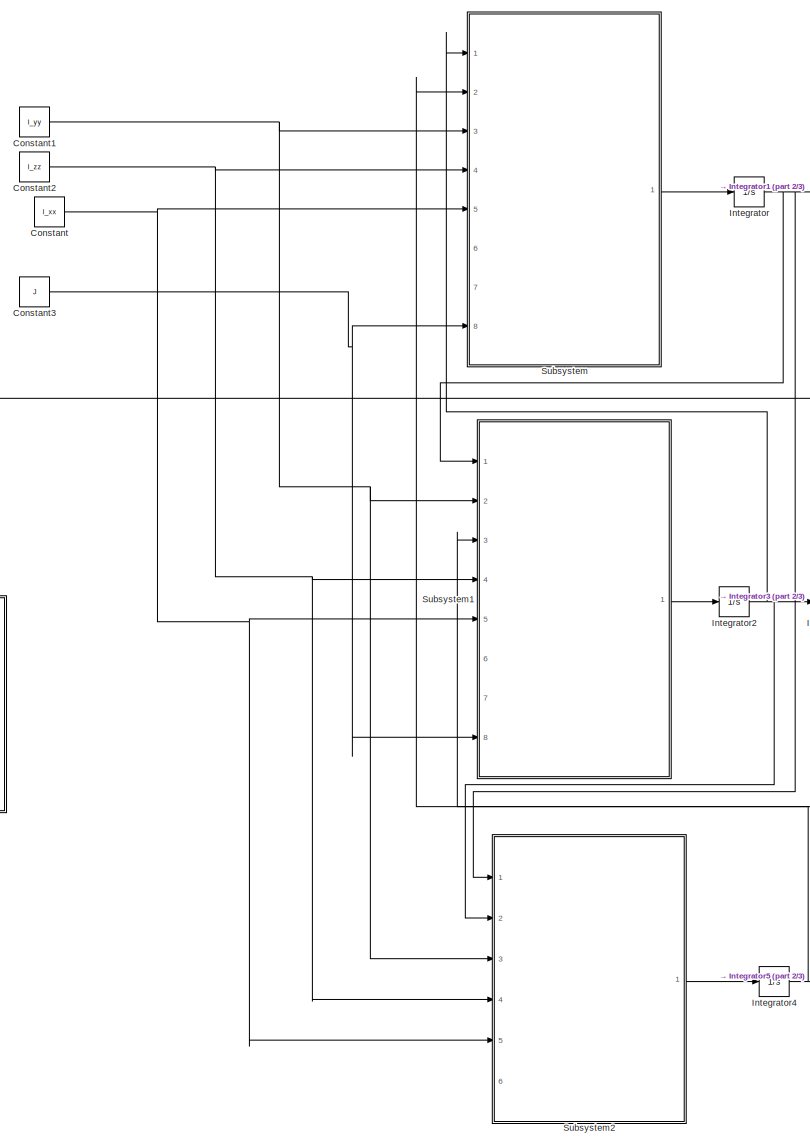
[diagram: root canvas - part 1/3, center side, full height]
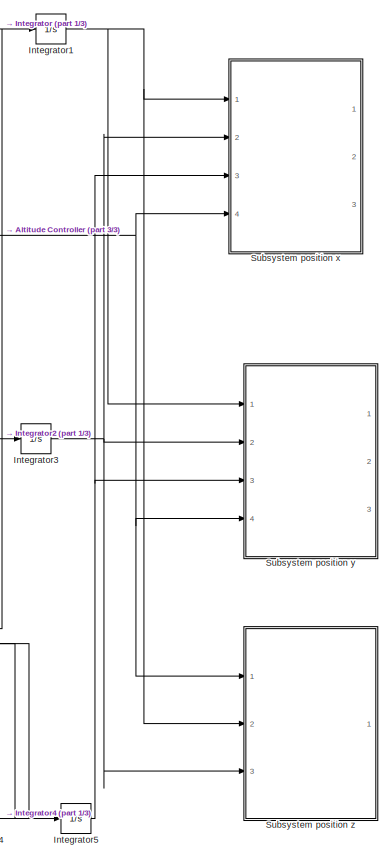
[diagram: root canvas - part 2/3, right side, full height]
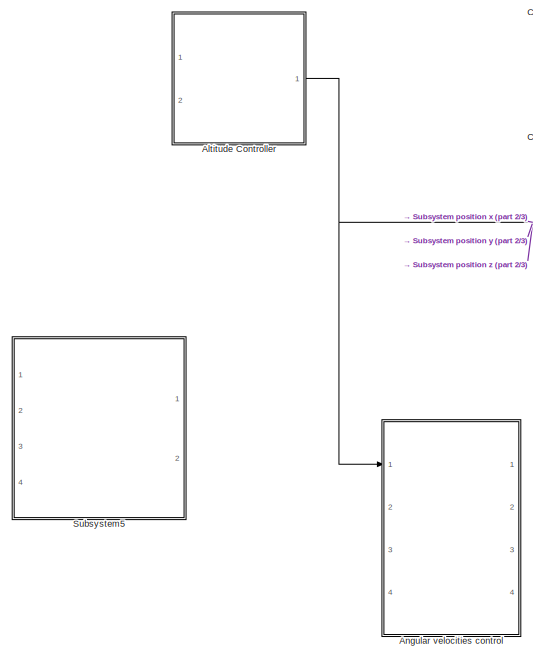
[diagram: root canvas - part 3/3, middle left region]
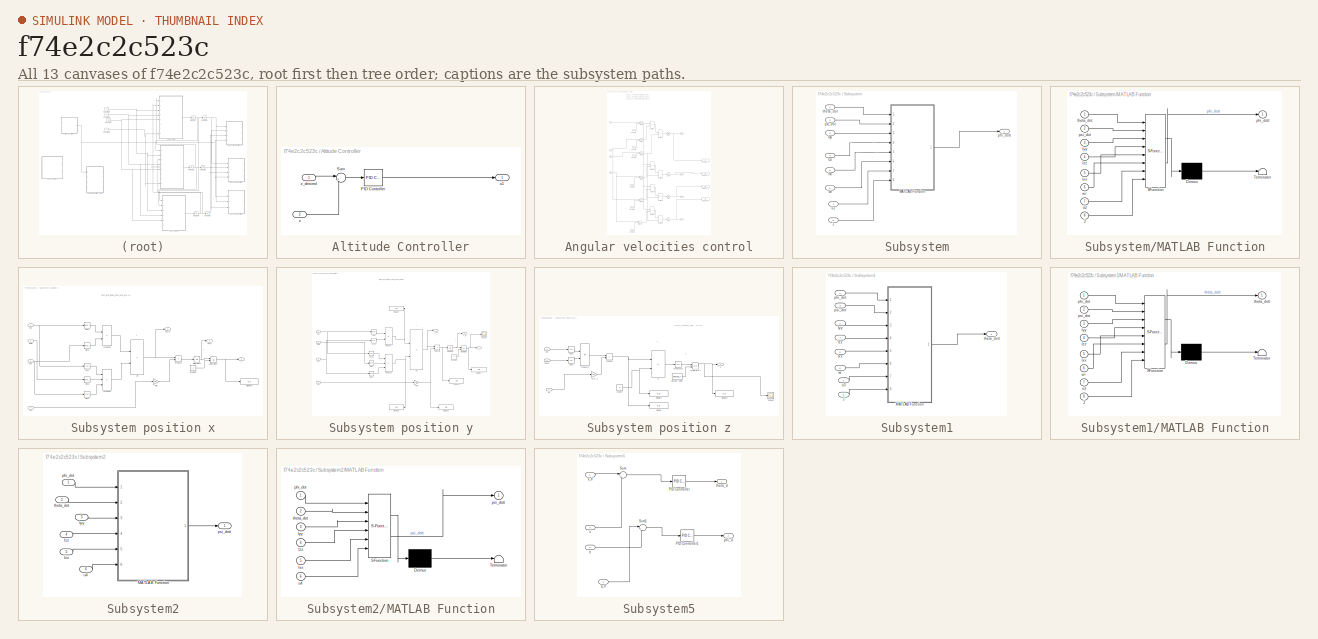
[diagram: thumbnail index - all 13 canvases of the model, root first then tree order]
MODEL slx_f74e2c2c523c
KIND model
CONFIG AbsTol = auto
CONFIG EnableMultiTasking = off
CONFIG FixedStep = auto
CONFIG MaxStep = auto
CONFIG MinStep = auto
CONFIG RelTol = 1e-3
CONFIG SampleTimeConstraint = Unconstrained
CONFIG SolverName = VariableStepAuto
CONFIG StartTime = 0.0
CONFIG StopTime = 10.0
BLOCK [SubSystem] Altitude Controller
  Ports = [2, 1]
  RequestExecContextInheritance = off
BLOCK [Reference] Altitude Controller/PID Controller  REF=slpidlib/PID Controller
  Ports = [1, 1]
  SourceBlock = slpidlib/PID Controller
  SourceProductBaseCode = SL
  SourceType = PID 1dof
BLOCK [Sum] Altitude Controller/Sum
  Inputs = |+-
  Ports = [2, 1]
BLOCK [Outport] Altitude Controller/u1
BLOCK [Inport] Altitude Controller/z
  Port = 2
BLOCK [Inport] Altitude Controller/z_desired
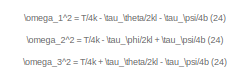
[diagram: Angular velocities control - part 1/3, top left region]
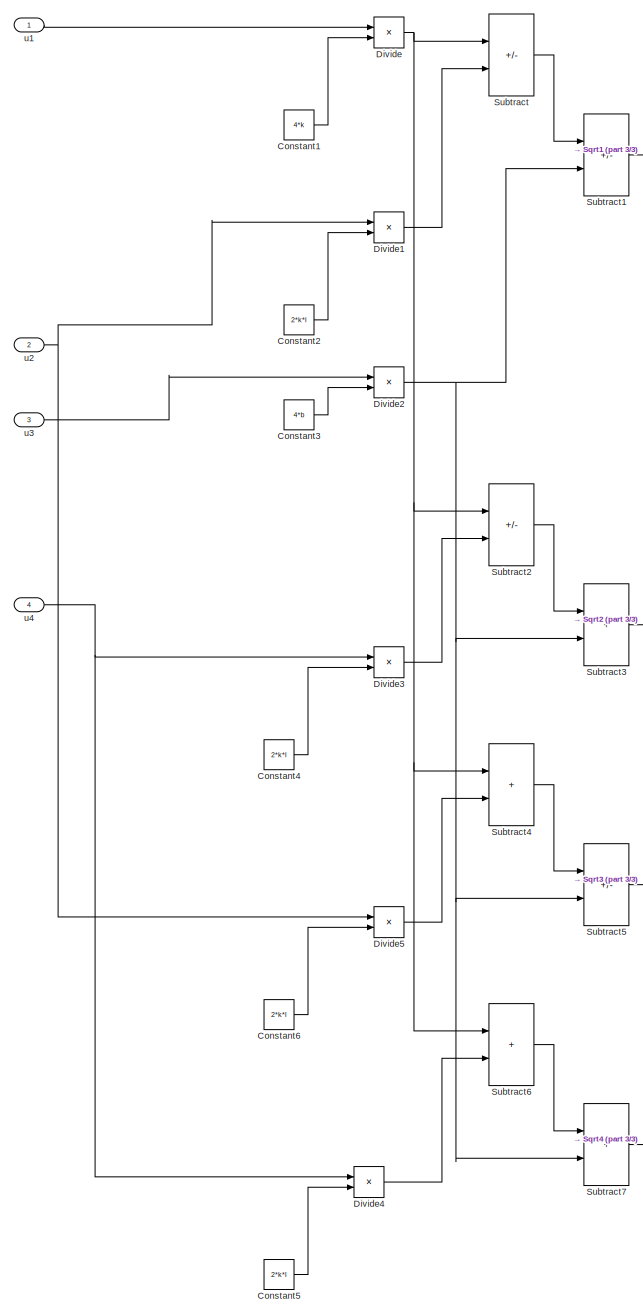
[diagram: Angular velocities control - part 2/3, left side, full height]
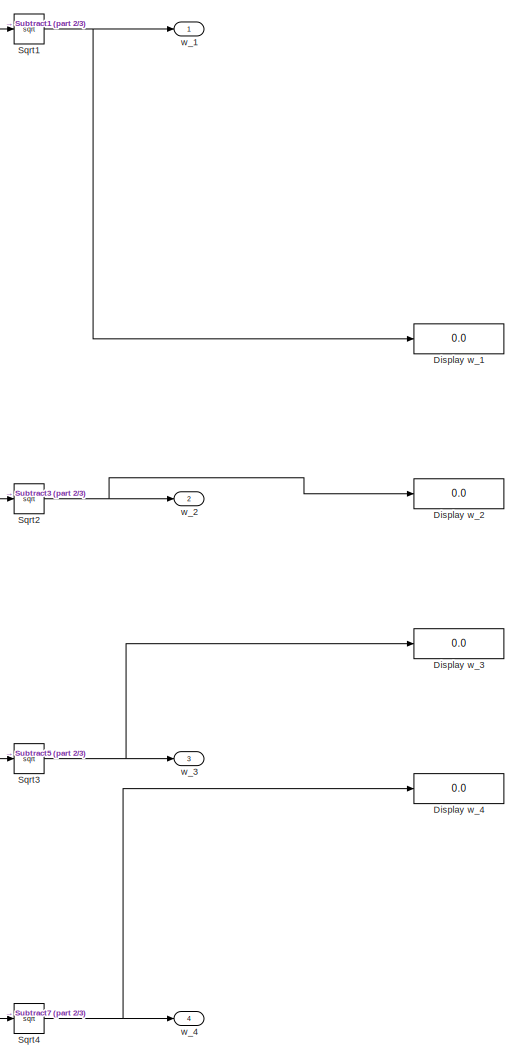
[diagram: Angular velocities control - part 3/3, middle right region]
BLOCK [SubSystem] Angular velocities control
  Ports = [4, 4]
  RequestExecContextInheritance = off
BLOCK [Constant] Angular velocities control/Constant1
  Value = 4*k
BLOCK [Constant] Angular velocities control/Constant2
  Value = 2*k*l
BLOCK [Constant] Angular velocities control/Constant3
  Value = 4*b
BLOCK [Constant] Angular velocities control/Constant4
  Value = 2*k*l
BLOCK [Constant] Angular velocities control/Constant5
  Value = 2*k*l
BLOCK [Constant] Angular velocities control/Constant6
  Value = 2*k*l
BLOCK [Display] Angular velocities control/Display w_1
  Decimation = 1
  Ports = [1]
BLOCK [Display] Angular velocities control/Display w_2
  Decimation = 1
  Ports = [1]
BLOCK [Display] Angular velocities control/Display w_3
  Decimation = 1
  Ports = [1]
BLOCK [Display] Angular velocities control/Display w_4
  Decimation = 1
  Ports = [1]
BLOCK [Product] Angular velocities control/Divide
  Inputs = */
  Ports = [2, 1]
BLOCK [Product] Angular velocities control/Divide1
  Inputs = */
  Ports = [2, 1]
BLOCK [Product] Angular velocities control/Divide2
  Inputs = */
  Ports = [2, 1]
BLOCK [Product] Angular velocities control/Divide3
  Inputs = */
  Ports = [2, 1]
BLOCK [Product] Angular velocities control/Divide4
  Inputs = */
  Ports = [2, 1]
BLOCK [Product] Angular velocities control/Divide5
  Inputs = */
  Ports = [2, 1]
BLOCK [Sqrt] Angular velocities control/Sqrt1
  OutputSignalType = real
BLOCK [Sqrt] Angular velocities control/Sqrt2
  OutputSignalType = real
BLOCK [Sqrt] Angular velocities control/Sqrt3
  OutputSignalType = real
BLOCK [Sqrt] Angular velocities control/Sqrt4
  OutputSignalType = real
BLOCK [Sum] Angular velocities control/Subtract
  IconShape = rectangular
  Inputs = +-
  Ports = [2, 1]
BLOCK [Sum] Angular velocities control/Subtract1
  IconShape = rectangular
  Inputs = +-
  Ports = [2, 1]
BLOCK [Sum] Angular velocities control/Subtract2
  IconShape = rectangular
  Inputs = +-
  Ports = [2, 1]
BLOCK [Sum] Angular velocities control/Subtract3
  IconShape = rectangular
  Ports = [2, 1]
BLOCK [Sum] Angular velocities control/Subtract4
  IconShape = rectangular
  Ports = [2, 1]
BLOCK [Sum] Angular velocities control/Subtract5
  IconShape = rectangular
  Inputs = +-
  Ports = [2, 1]
BLOCK [Sum] Angular velocities control/Subtract6
  IconShape = rectangular
  Ports = [2, 1]
BLOCK [Sum] Angular velocities control/Subtract7
  IconShape = rectangular
  Ports = [2, 1]
BLOCK [Inport] Angular velocities control/u1
BLOCK [Inport] Angular velocities control/u2
  Port = 2
BLOCK [Inport] Angular velocities control/u3 
  Port = 3
BLOCK [Inport] Angular velocities control/u4
  Port = 4
BLOCK [Outport] Angular velocities control/w_1
BLOCK [Outport] Angular velocities control/w_2
  Port = 2
BLOCK [Outport] Angular velocities control/w_3
  Port = 3
BLOCK [Outport] Angular velocities control/w_4 
  Port = 4
BLOCK [Constant] Constant
  Value = I_xx
BLOCK [Constant] Constant1
  Value = I_yy
BLOCK [Constant] Constant2
  Value = I_zz
BLOCK [Constant] Constant3
  Value = J
BLOCK [Integrator] Integrator
  Ports = [1, 1]
BLOCK [Integrator] Integrator1
  Ports = [1, 1]
BLOCK [Integrator] Integrator2
  Ports = [1, 1]
BLOCK [Integrator] Integrator3
  Ports = [1, 1]
BLOCK [Integrator] Integrator4
  Ports = [1, 1]
BLOCK [Integrator] Integrator5
  Ports = [1, 1]
BLOCK [SubSystem] Subsystem
  Ports = [8, 1]
  RequestExecContextInheritance = off
BLOCK [SubSystem] Subsystem position x
  Ports = [4, 3]
  RequestExecContextInheritance = off
BLOCK [Constant] Subsystem position x/Constant
  Value = x_i
BLOCK [Trigonometry] Subsystem position x/Cos1
  Operator = cos
  Ports = [1, 1]
BLOCK [Display] Subsystem position x/Display6
  Decimation = 1
  Ports = [1]
BLOCK [Integrator] Subsystem position x/Integrator4
  Ports = [1, 1]
BLOCK [Integrator] Subsystem position x/Integrator5
  InitialConditionSource = external
  Ports = [2, 1]
BLOCK [Product] Subsystem position x/Product
  Ports = [2, 1]
BLOCK [Product] Subsystem position x/Product2
  Ports = [2, 1]
BLOCK [Product] Subsystem position x/Product3
  Inputs = 3
  Ports = [3, 1]
BLOCK [Trigonometry] Subsystem position x/Sin1 1
  Ports = [1, 1]
BLOCK [Trigonometry] Subsystem position x/Sin1 2
  Ports = [1, 1]
BLOCK [Trigonometry] Subsystem position x/Sin1 3
  Ports = [1, 1]
BLOCK [Trigonometry] Subsystem position x/Sin1 4
  Operator = cos
  Ports = [1, 1]
BLOCK [Gain] Subsystem position x/T//m 2
  Gain = 1/m
BLOCK [Sum] Subsystem position x/Z''2
  IconShape = rectangular
  Ports = [2, 1]
BLOCK [Outport] Subsystem position x/acc_x
  Port = 2
BLOCK [Inport] Subsystem position x/phi 
BLOCK [Inport] Subsystem position x/psi 
  Port = 3
BLOCK [Inport] Subsystem position x/theta 
  Port = 2
BLOCK [Inport] Subsystem position x/u1
  Port = 4
BLOCK [Outport] Subsystem position x/vel_x
  Port = 3
BLOCK [Outport] Subsystem position x/x
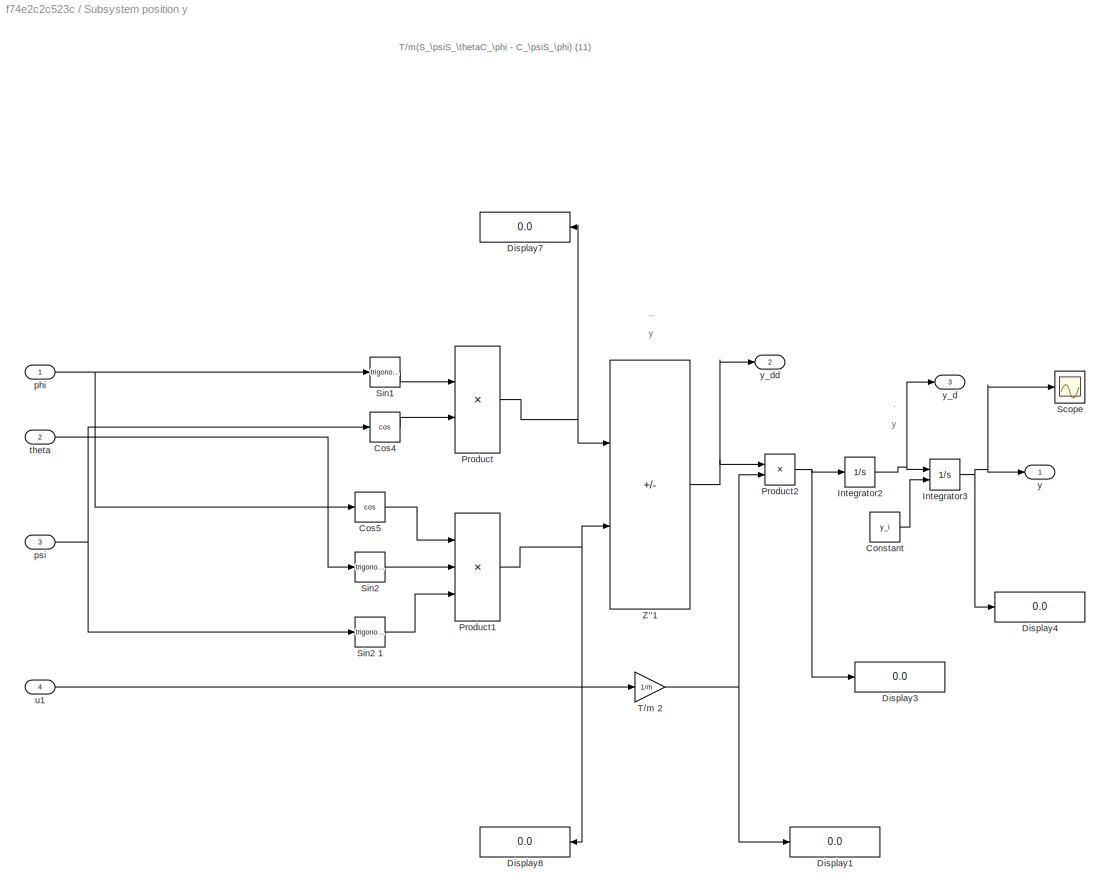
BLOCK [SubSystem] Subsystem position y
  Ports = [4, 3]
  RequestExecContextInheritance = off
BLOCK [Constant] Subsystem position y/Constant
  Value = y_i
BLOCK [Trigonometry] Subsystem position y/Cos4
  Operator = cos
  Ports = [1, 1]
BLOCK [Trigonometry] Subsystem position y/Cos5
  Operator = cos
  Ports = [1, 1]
BLOCK [Display] Subsystem position y/Display1
  Decimation = 1
  Ports = [1]
BLOCK [Display] Subsystem position y/Display3
  Decimation = 1
  Ports = [1]
BLOCK [Display] Subsystem position y/Display4
  Decimation = 1
  Ports = [1]
BLOCK [Display] Subsystem position y/Display7
  Decimation = 1
  NameLocation = top
  Ports = [1]
BLOCK [Display] Subsystem position y/Display8
  Decimation = 1
  NameLocation = top
  Ports = [1]
BLOCK [Integrator] Subsystem position y/Integrator2
  Ports = [1, 1]
BLOCK [Integrator] Subsystem position y/Integrator3
  InitialConditionSource = external
  Ports = [2, 1]
BLOCK [Product] Subsystem position y/Product
  Ports = [2, 1]
BLOCK [Product] Subsystem position y/Product1
  Inputs = 3
  Ports = [3, 1]
BLOCK [Product] Subsystem position y/Product2
  Ports = [2, 1]
BLOCK [Scope] Subsystem position y/Scope
  Floating = off
  NumInputPorts = 1
  Ports = [1]
  ScopeSpecificationString = Simulink.scopes.TimeScopeBlockCfg('CurrentConfiguration', extmgr.ConfigurationSet(extmgr.Configuration('Core','General UI',true),extmgr.Configuration('Core','Source UI',true),extmgr.Configuration('Sources','WiredSimulink',true),extmgr.Configuration('Visuals','Time Domain',true,'SerializedDisplays',{struct('MinYLimReal','-1179.08654','MaxYLimReal','131.00962','YLabelReal','','MinYLimMag','  0.00000...<+1453ch>
BLOCK [Trigonometry] Subsystem position y/Sin1 
  Ports = [1, 1]
BLOCK [Trigonometry] Subsystem position y/Sin2 
  Ports = [1, 1]
BLOCK [Trigonometry] Subsystem position y/Sin2 1
  Ports = [1, 1]
BLOCK [Gain] Subsystem position y/T//m 2
  Gain = 1/m
BLOCK [Sum] Subsystem position y/Z''1
  IconShape = rectangular
  Inputs = -+
  Ports = [2, 1]
BLOCK [Inport] Subsystem position y/phi 
BLOCK [Inport] Subsystem position y/psi 
  Port = 3
BLOCK [Inport] Subsystem position y/theta 
  Port = 2
BLOCK [Inport] Subsystem position y/u1 
  Port = 4
BLOCK [Outport] Subsystem position y/y 
BLOCK [Outport] Subsystem position y/y_d
  Port = 3
BLOCK [Outport] Subsystem position y/y_dd
  Port = 2
BLOCK [SubSystem] Subsystem position z
  Ports = [3, 1]
  RequestExecContextInheritance = off
BLOCK [Constant] Subsystem position z/Altitude Initial
  Value = altitude_i
BLOCK [Trigonometry] Subsystem position z/Cos2
  Operator = cos
  Ports = [1, 1]
BLOCK [Trigonometry] Subsystem position z/Cos3
  Operator = cos
  Ports = [1, 1]
BLOCK [Display] Subsystem position z/Display
  Decimation = 1
  Ports = [1]
BLOCK [Display] Subsystem position z/Display1
  Decimation = 1
  Ports = [1]
BLOCK [Display] Subsystem position z/Display2
  Decimation = 1
  Ports = [1]
BLOCK [Constant] Subsystem position z/Gravity
  Value = g
BLOCK [Integrator] Subsystem position z/Integrator
  Ports = [1, 1]
BLOCK [Integrator] Subsystem position z/Integrator1
  InitialConditionSource = external
  Ports = [2, 1]
BLOCK [Product] Subsystem position z/Product
  Ports = [2, 1]
BLOCK [Product] Subsystem position z/Product4
  Ports = [2, 1]
BLOCK [Scope] Subsystem position z/Scope1
  Floating = off
  NumInputPorts = 1
  Ports = [1]
  ScopeSpecificationString = Simulink.scopes.TimeScopeBlockCfg('CurrentConfiguration', extmgr.ConfigurationSet(extmgr.Configuration('Core','General UI',true),extmgr.Configuration('Core','Source UI',true),extmgr.Configuration('Sources','WiredSimulink',true,'DataLoggingVariableName','ScopeData1'),extmgr.Configuration('Visuals','Time Domain',true,'SerializedDisplays',{struct('MinYLimReal','-1.00000','MaxYLimReal','1.00000','YLab...<+1443ch>
BLOCK [Gain] Subsystem position z/T//m 2
  Gain = 1/m
BLOCK [Sum] Subsystem position z/Z''
  IconShape = rectangular
  Inputs = +-
  Ports = [2, 1]
BLOCK [Inport] Subsystem position z/phi 
  Port = 2
BLOCK [Inport] Subsystem position z/theta 
  Port = 3
BLOCK [Inport] Subsystem position z/u1
BLOCK [Outport] Subsystem position z/z
BLOCK [Inport] Subsystem/Ixx
  Port = 5
BLOCK [Inport] Subsystem/Iyy
  Port = 3
BLOCK [Inport] Subsystem/Izz
  Port = 4
BLOCK [Inport] Subsystem/J
  Port = 8
BLOCK [SubSystem] Subsystem/MATLAB Function
  ErrorFcn = Stateflow.Translate.translate
  PermitHierarchicalResolution = ExplicitOnly
  Ports = [8, 1]
  RequestExecContextInheritance = off
  SFBlockType = MATLAB Function
  TreatAsAtomicUnit = on
BLOCK [Demux] Subsystem/MATLAB Function/ Demux 
  Outputs = 1
  Ports = [1, 1]
BLOCK [S-Function] Subsystem/MATLAB Function/ SFunction 
  EnableBusSupport = on
  FunctionName = sf_sfun
  PortCounts = [8 2]
  Ports = [8, 2]
  SFcnIsStateOwnerBlock = off
  SFunctionDeploymentMode = off
  Tag = Stateflow S-Function 8
BLOCK [Terminator] Subsystem/MATLAB Function/ Terminator 
BLOCK [Inport] Subsystem/MATLAB Function/Ixx
  Port = 5
BLOCK [Inport] Subsystem/MATLAB Function/Iyy
  Port = 3
BLOCK [Inport] Subsystem/MATLAB Function/Izz
  Port = 4
BLOCK [Inport] Subsystem/MATLAB Function/J
  Port = 8
BLOCK [Outport] Subsystem/MATLAB Function/phi_dott
BLOCK [Inport] Subsystem/MATLAB Function/psi_dot
  Port = 2
BLOCK [Inport] Subsystem/MATLAB Function/theta_dot
BLOCK [Inport] Subsystem/MATLAB Function/u2
  Port = 7
BLOCK [Inport] Subsystem/MATLAB Function/wr
  Port = 6
BLOCK [Outport] Subsystem/phi_dott
BLOCK [Inport] Subsystem/psi_dot
  Port = 2
BLOCK [Inport] Subsystem/theta_dot
BLOCK [Inport] Subsystem/u2
  Port = 7
BLOCK [Inport] Subsystem/wr
  Port = 6
BLOCK [SubSystem] Subsystem1
  Ports = [8, 1]
  RequestExecContextInheritance = off
BLOCK [Inport] Subsystem1/Ixx
  Port = 5
BLOCK [Inport] Subsystem1/Iyy
  Port = 2
BLOCK [Inport] Subsystem1/Izz
  Port = 4
BLOCK [Inport] Subsystem1/J
  Port = 8
BLOCK [SubSystem] Subsystem1/MATLAB Function
  ErrorFcn = Stateflow.Translate.translate
  PermitHierarchicalResolution = ExplicitOnly
  Ports = [8, 1]
  RequestExecContextInheritance = off
  SFBlockType = MATLAB Function
  TreatAsAtomicUnit = on
BLOCK [Demux] Subsystem1/MATLAB Function/ Demux 
  Outputs = 1
  Ports = [1, 1]
BLOCK [S-Function] Subsystem1/MATLAB Function/ SFunction 
  EnableBusSupport = on
  FunctionName = sf_sfun
  PortCounts = [8 2]
  Ports = [8, 2]
  SFcnIsStateOwnerBlock = off
  SFunctionDeploymentMode = off
  Tag = Stateflow S-Function 9
BLOCK [Terminator] Subsystem1/MATLAB Function/ Terminator 
BLOCK [Inport] Subsystem1/MATLAB Function/Ixx
  Port = 5
BLOCK [Inport] Subsystem1/MATLAB Function/Iyy
  Port = 3
BLOCK [Inport] Subsystem1/MATLAB Function/Izz
  Port = 4
BLOCK [Inport] Subsystem1/MATLAB Function/J
  Port = 8
BLOCK [Inport] Subsystem1/MATLAB Function/phi_dot
BLOCK [Inport] Subsystem1/MATLAB Function/psi_dot
  Port = 2
BLOCK [Outport] Subsystem1/MATLAB Function/theta_dott
BLOCK [Inport] Subsystem1/MATLAB Function/u3
  Port = 7
BLOCK [Inport] Subsystem1/MATLAB Function/wr
  Port = 6
BLOCK [Inport] Subsystem1/phi_dot
BLOCK [Inport] Subsystem1/psi_dot
  Port = 3
BLOCK [Outport] Subsystem1/theta_dott
BLOCK [Inport] Subsystem1/u3
  Port = 7
BLOCK [Inport] Subsystem1/wr
  Port = 6
BLOCK [SubSystem] Subsystem2
  Ports = [6, 1]
  RequestExecContextInheritance = off
BLOCK [Inport] Subsystem2/Ixx
  Port = 5
BLOCK [Inport] Subsystem2/Iyy
  Port = 3
BLOCK [Inport] Subsystem2/Izz
  Port = 4
BLOCK [SubSystem] Subsystem2/MATLAB Function
  ErrorFcn = Stateflow.Translate.translate
  PermitHierarchicalResolution = ExplicitOnly
  Ports = [6, 1]
  RequestExecContextInheritance = off
  SFBlockType = MATLAB Function
  TreatAsAtomicUnit = on
BLOCK [Demux] Subsystem2/MATLAB Function/ Demux 
  Outputs = 1
  Ports = [1, 1]
BLOCK [S-Function] Subsystem2/MATLAB Function/ SFunction 
  EnableBusSupport = on
  FunctionName = sf_sfun
  PortCounts = [6 2]
  Ports = [6, 2]
  SFcnIsStateOwnerBlock = off
  SFunctionDeploymentMode = off
  Tag = Stateflow S-Function 10
BLOCK [Terminator] Subsystem2/MATLAB Function/ Terminator 
BLOCK [Inport] Subsystem2/MATLAB Function/Ixx
  Port = 5
BLOCK [Inport] Subsystem2/MATLAB Function/Iyy
  Port = 3
BLOCK [Inport] Subsystem2/MATLAB Function/Izz
  Port = 4
BLOCK [Inport] Subsystem2/MATLAB Function/phi_dot
BLOCK [Outport] Subsystem2/MATLAB Function/psi_dott
BLOCK [Inport] Subsystem2/MATLAB Function/theta_dot
  Port = 2
BLOCK [Inport] Subsystem2/MATLAB Function/u4
  Port = 6
BLOCK [Inport] Subsystem2/phi_dot
BLOCK [Outport] Subsystem2/psi_dott
BLOCK [Inport] Subsystem2/theta_dot
  Port = 2
BLOCK [Inport] Subsystem2/u4
  Port = 6
BLOCK [SubSystem] Subsystem5
  Ports = [4, 2]
  RequestExecContextInheritance = off
BLOCK [Reference] Subsystem5/PID Controller  REF=slpidlib/PID Controller
  Ports = [1, 1]
  SourceBlock = slpidlib/PID Controller
  SourceProductBaseCode = SL
  SourceType = PID 1dof
BLOCK [Reference] Subsystem5/PID Controller1  REF=slpidlib/PID Controller
  Ports = [1, 1]
  SourceBlock = slpidlib/PID Controller
  SourceProductBaseCode = SL
  SourceType = PID 1dof
BLOCK [Sum] Subsystem5/Sum
  Inputs = |+-
  Ports = [2, 1]
BLOCK [Sum] Subsystem5/Sum1
  Inputs = |+-
  Ports = [2, 1]
BLOCK [Outport] Subsystem5/phi_d
  Port = 2
BLOCK [Outport] Subsystem5/theta_d
BLOCK [Inport] Subsystem5/x
  Port = 3
BLOCK [Inport] Subsystem5/x_d
BLOCK [Inport] Subsystem5/y
  Port = 4
BLOCK [Inport] Subsystem5/y_d
  Port = 2
ANNOTATION Angular velocities control: \omega_1^2 = T/4k - \tau_\theta/2kl - \tau_\psi/4b (24) \omega_2^2 = T/4k - \tau_\phi/2kl + \tau_\psi/4b (24) \omega_3^2 = T/4k + \tau_\theta/2kl - \tau_\psi/4b (24) \omega_4^2 = T/4k + \tau_\phi/2kl + \tau_\psi/4b (24)
ANNOTATION Subsystem position x: .
ANNOTATION Subsystem position x: ..
ANNOTATION Subsystem position x: x
ANNOTATION Subsystem position x: T/m(C_\psiS_\thetaC_\phi + S_\psiS_\phi) (11)
ANNOTATION Subsystem position y: .
ANNOTATION Subsystem position y: ..
ANNOTATION Subsystem position y: y
ANNOTATION Subsystem position y: T/m(S_\psiS_\thetaC_\phi - C_\psiS_\phi) (11)
ANNOTATION Subsystem position z: .
ANNOTATION Subsystem position z: ..
ANNOTATION Subsystem position z: z
ANNOTATION Subsystem position z: T/m(C_\thetaC_\phi) - g (11)
LINE Altitude Controller/PID Controller:1 -> Altitude Controller/u1:1
LINE Altitude Controller/Sum:1 -> Altitude Controller/PID Controller:1
LINE Altitude Controller/z:1 -> Altitude Controller/Sum:2
LINE Altitude Controller/z_desired:1 -> Altitude Controller/Sum:1
NET Altitude Controller:1 -> Angular velocities control:1, Subsystem position x:4, Subsystem position y:4, Subsystem position z:1
LINE Angular velocities control/Constant1:1 -> Angular velocities control/Divide:2
LINE Angular velocities control/Constant2:1 -> Angular velocities control/Divide1:2
LINE Angular velocities control/Constant3:1 -> Angular velocities control/Divide2:2
LINE Angular velocities control/Constant4:1 -> Angular velocities control/Divide3:2
LINE Angular velocities control/Constant5:1 -> Angular velocities control/Divide4:2
LINE Angular velocities control/Constant6:1 -> Angular velocities control/Divide5:2
LINE Angular velocities control/Divide1:1 -> Angular velocities control/Subtract:2
NET Angular velocities control/Divide2:1 -> Angular velocities control/Subtract1:2, Angular velocities control/Subtract3:2, Angular velocities control/Subtract5:2, Angular velocities control/Subtract7:2
LINE Angular velocities control/Divide3:1 -> Angular velocities control/Subtract2:2
LINE Angular velocities control/Divide4:1 -> Angular velocities control/Subtract6:2
LINE Angular velocities control/Divide5:1 -> Angular velocities control/Subtract4:2
NET Angular velocities control/Divide:1 -> Angular velocities control/Subtract2:1, Angular velocities control/Subtract4:1, Angular velocities control/Subtract6:1, Angular velocities control/Subtract:1
NET Angular velocities control/Sqrt1:1 -> Angular velocities control/Display w_1:1, Angular velocities control/w_1:1
NET Angular velocities control/Sqrt2:1 -> Angular velocities control/Display w_2:1, Angular velocities control/w_2:1
NET Angular velocities control/Sqrt3:1 -> Angular velocities control/Display w_3:1, Angular velocities control/w_3:1
NET Angular velocities control/Sqrt4:1 -> Angular velocities control/Display w_4:1, Angular velocities control/w_4 :1
LINE Angular velocities control/Subtract1:1 -> Angular velocities control/Sqrt1:1
LINE Angular velocities control/Subtract2:1 -> Angular velocities control/Subtract3:1
LINE Angular velocities control/Subtract3:1 -> Angular velocities control/Sqrt2:1
LINE Angular velocities control/Subtract4:1 -> Angular velocities control/Subtract5:1
LINE Angular velocities control/Subtract5:1 -> Angular velocities control/Sqrt3:1
LINE Angular velocities control/Subtract6:1 -> Angular velocities control/Subtract7:1
LINE Angular velocities control/Subtract7:1 -> Angular velocities control/Sqrt4:1
LINE Angular velocities control/Subtract:1 -> Angular velocities control/Subtract1:1
LINE Angular velocities control/u1:1 -> Angular velocities control/Divide:1
NET Angular velocities control/u2:1 -> Angular velocities control/Divide1:1, Angular velocities control/Divide5:1
LINE Angular velocities control/u3 :1 -> Angular velocities control/Divide2:1
NET Angular velocities control/u4:1 -> Angular velocities control/Divide3:1, Angular velocities control/Divide4:1
NET Constant1:1 -> Subsystem1:2, Subsystem2:3, Subsystem:3
NET Constant2:1 -> Subsystem1:4, Subsystem2:4, Subsystem:4
NET Constant3:1 -> Subsystem1:8, Subsystem:8
NET Constant:1 -> Subsystem1:5, Subsystem2:5, Subsystem:5
NET Integrator1:1 -> Subsystem position x:1, Subsystem position y:1, Subsystem position z:2
NET Integrator2:1 -> Integrator3:1, Subsystem2:2, Subsystem:1
NET Integrator3:1 -> Subsystem position x:2, Subsystem position y:2, Subsystem position z:3
NET Integrator4:1 -> Integrator5:1, Subsystem1:3, Subsystem:2
NET Integrator5:1 -> Subsystem position x:3, Subsystem position y:3
NET Integrator:1 -> Integrator1:1, Subsystem1:1, Subsystem2:1
LINE Subsystem position x/Constant:1 -> Subsystem position x/Integrator5:2
LINE Subsystem position x/Cos1:1 -> Subsystem position x/Product3:1
NET Subsystem position x/Integrator4:1 -> Subsystem position x/Integrator5:1, Subsystem position x/vel_x:1
NET Subsystem position x/Integrator5:1 -> Subsystem position x/Display6:1, Subsystem position x/x:1
LINE Subsystem position x/Product2:1 -> Subsystem position x/Z''2:1
LINE Subsystem position x/Product3:1 -> Subsystem position x/Z''2:2
LINE Subsystem position x/Product:1 -> Subsystem position x/Integrator4:1
LINE Subsystem position x/Sin1 1:1 -> Subsystem position x/Product2:1
LINE Subsystem position x/Sin1 2:1 -> Subsystem position x/Product2:2
LINE Subsystem position x/Sin1 3:1 -> Subsystem position x/Product3:2
LINE Subsystem position x/Sin1 4:1 -> Subsystem position x/Product3:3
LINE Subsystem position x/T//m 2:1 -> Subsystem position x/Product:2
NET Subsystem position x/Z''2:1 -> Subsystem position x/Product:1, Subsystem position x/acc_x:1
NET Subsystem position x/phi :1 -> Subsystem position x/Cos1:1, Subsystem position x/Sin1 1:1
NET Subsystem position x/psi :1 -> Subsystem position x/Sin1 2:1, Subsystem position x/Sin1 4:1
LINE Subsystem position x/theta :1 -> Subsystem position x/Sin1 3:1
LINE Subsystem position x/u1:1 -> Subsystem position x/T//m 2:1
LINE Subsystem position y/Constant:1 -> Subsystem position y/Integrator3:2
LINE Subsystem position y/Cos4:1 -> Subsystem position y/Product:2
LINE Subsystem position y/Cos5:1 -> Subsystem position y/Product1:1
NET Subsystem position y/Integrator2:1 -> Subsystem position y/Integrator3:1, Subsystem position y/y_d:1
NET Subsystem position y/Integrator3:1 -> Subsystem position y/Display4:1, Subsystem position y/Scope:1, Subsystem position y/y :1
NET Subsystem position y/Product1:1 -> Subsystem position y/Display8:1, Subsystem position y/Z''1:2
NET Subsystem position y/Product2:1 -> Subsystem position y/Display3:1, Subsystem position y/Integrator2:1
NET Subsystem position y/Product:1 -> Subsystem position y/Display7:1, Subsystem position y/Z''1:1
LINE Subsystem position y/Sin1 :1 -> Subsystem position y/Product:1
LINE Subsystem position y/Sin2 1:1 -> Subsystem position y/Product1:3
LINE Subsystem position y/Sin2 :1 -> Subsystem position y/Product1:2
NET Subsystem position y/T//m 2:1 -> Subsystem position y/Display1:1, Subsystem position y/Product2:2
NET Subsystem position y/Z''1:1 -> Subsystem position y/Product2:1, Subsystem position y/y_dd:1
NET Subsystem position y/phi :1 -> Subsystem position y/Cos5:1, Subsystem position y/Sin1 :1
NET Subsystem position y/psi :1 -> Subsystem position y/Cos4:1, Subsystem position y/Sin2 1:1
LINE Subsystem position y/theta :1 -> Subsystem position y/Sin2 :1
LINE Subsystem position y/u1 :1 -> Subsystem position y/T//m 2:1
LINE Subsystem position z/Altitude Initial:1 -> Subsystem position z/Integrator1:2
LINE Subsystem position z/Cos2:1 -> Subsystem position z/Product4:2
LINE Subsystem position z/Cos3:1 -> Subsystem position z/Product4:1
NET Subsystem position z/Gravity:1 -> Subsystem position z/Display1:1, Subsystem position z/Z'':2
NET Subsystem position z/Integrator1:1 -> Subsystem position z/Display2:1, Subsystem position z/Scope1:1, Subsystem position z/z:1
LINE Subsystem position z/Integrator:1 -> Subsystem position z/Integrator1:1
LINE Subsystem position z/Product4:1 -> Subsystem position z/Product:1
NET Subsystem position z/Product:1 -> Subsystem position z/Display:1, Subsystem position z/Z'':1
LINE Subsystem position z/T//m 2:1 -> Subsystem position z/Product:2
LINE Subsystem position z/Z'':1 -> Subsystem position z/Integrator:1
LINE Subsystem position z/phi :1 -> Subsystem position z/Cos3:1
LINE Subsystem position z/theta :1 -> Subsystem position z/Cos2:1
LINE Subsystem position z/u1:1 -> Subsystem position z/T//m 2:1
LINE Subsystem/Ixx:1 -> Subsystem/MATLAB Function:5
LINE Subsystem/Iyy:1 -> Subsystem/MATLAB Function:3
LINE Subsystem/Izz:1 -> Subsystem/MATLAB Function:4
LINE Subsystem/J:1 -> Subsystem/MATLAB Function:8
LINE Subsystem/MATLAB Function:1 -> Subsystem/phi_dott:1
LINE Subsystem/psi_dot:1 -> Subsystem/MATLAB Function:2
LINE Subsystem/theta_dot:1 -> Subsystem/MATLAB Function:1
LINE Subsystem/u2:1 -> Subsystem/MATLAB Function:7
LINE Subsystem/wr:1 -> Subsystem/MATLAB Function:6
LINE Subsystem1/Ixx:1 -> Subsystem1/MATLAB Function:5
LINE Subsystem1/Iyy:1 -> Subsystem1/MATLAB Function:3
LINE Subsystem1/Izz:1 -> Subsystem1/MATLAB Function:4
LINE Subsystem1/J:1 -> Subsystem1/MATLAB Function:8
LINE Subsystem1/MATLAB Function:1 -> Subsystem1/theta_dott:1
LINE Subsystem1/phi_dot:1 -> Subsystem1/MATLAB Function:1
LINE Subsystem1/psi_dot:1 -> Subsystem1/MATLAB Function:2
LINE Subsystem1/u3:1 -> Subsystem1/MATLAB Function:7
LINE Subsystem1/wr:1 -> Subsystem1/MATLAB Function:6
LINE Subsystem1:1 -> Integrator2:1
LINE Subsystem2/Ixx:1 -> Subsystem2/MATLAB Function:5
LINE Subsystem2/Iyy:1 -> Subsystem2/MATLAB Function:3
LINE Subsystem2/Izz:1 -> Subsystem2/MATLAB Function:4
LINE Subsystem2/MATLAB Function:1 -> Subsystem2/psi_dott:1
LINE Subsystem2/phi_dot:1 -> Subsystem2/MATLAB Function:1
LINE Subsystem2/theta_dot:1 -> Subsystem2/MATLAB Function:2
LINE Subsystem2/u4:1 -> Subsystem2/MATLAB Function:6
LINE Subsystem2:1 -> Integrator4:1
LINE Subsystem5/PID Controller1:1 -> Subsystem5/phi_d:1
LINE Subsystem5/PID Controller:1 -> Subsystem5/theta_d:1
LINE Subsystem5/Sum1:1 -> Subsystem5/PID Controller1:1
LINE Subsystem5/Sum:1 -> Subsystem5/PID Controller:1
LINE Subsystem5/x:1 -> Subsystem5/Sum:2
LINE Subsystem5/x_d:1 -> Subsystem5/Sum:1
LINE Subsystem5/y:1 -> Subsystem5/Sum1:2
LINE Subsystem5/y_d:1 -> Subsystem5/Sum1:1
LINE Subsystem:1 -> Integrator:1
note: NET lines group one-source signal fan-out (src -> all destinations, sorted); 1:1 wires keep LINE
CHART Subsystem/MATLAB Function states=1 transitions=1
  STATE_LABEL 'eML_blk_kernel()'
  STATE_LABEL 'SCRIPT:\nfunction phi_dott = fcn(theta_dot,psi_dot,Iyy,Izz,Ixx,wr,u2,J)\na=(theta_dot*psi_dot*(Iyy-Izz))/(Ixx);\nb=(J/Ixx)*theta_dot*wr;\nc=u2/Ixx;\n\nphi_dott=a-b+c;\n\nend\n'
CHART Subsystem1/MATLAB Function states=1 transitions=1
  STATE_LABEL 'eML_blk_kernel()'
  STATE_LABEL 'SCRIPT:\nfunction theta_dott = fcn(phi_dot,psi_dot,Iyy,Izz,Ixx,wr,u3,J)\naa=(phi_dot*psi_dot*(Izz-Ixx))/(Iyy);\nbb=(J/Iyy)*phi_dot*wr;\ncc=u3/Iyy;\n\ntheta_dott=aa+bb+cc;\n\nend\n'
CHART Subsystem2/MATLAB Function states=1 transitions=1
  STATE_LABEL 'eML_blk_kernel()'
  STATE_LABEL 'SCRIPT:\nfunction psi_dott = fcn(phi_dot,theta_dot,Iyy,Izz,Ixx,u4)\naaa=(phi_dot*theta_dot*(Ixx-Iyy))/(Izz);\n\nccc=u4/Izz;\n\npsi_dott=aaa+ccc;\n\nend'
CHART  states=0 transitions=0
CHART  states=0 transitions=0
CHART  states=0 transitions=0
